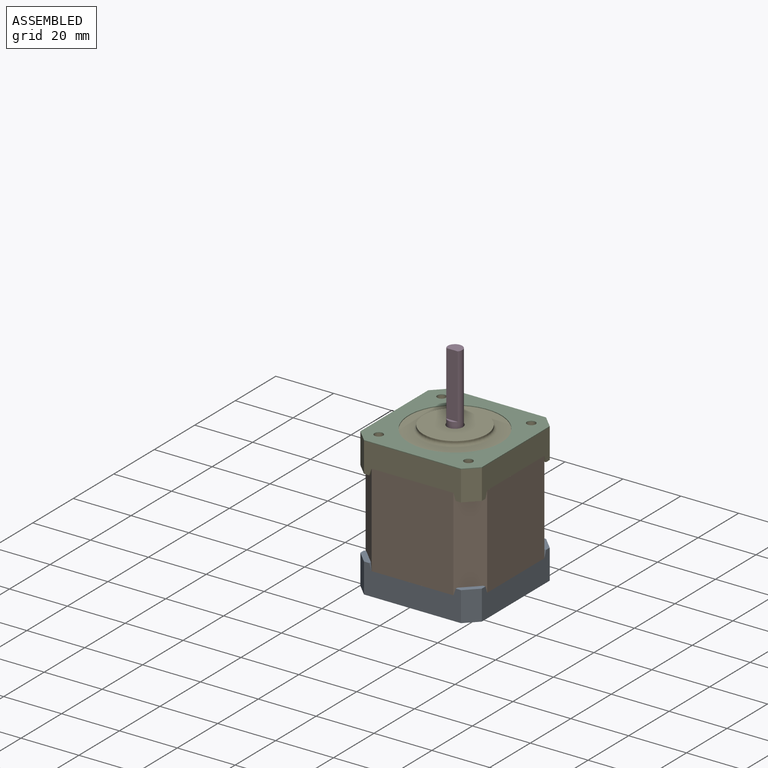
[diagram: assembled view]
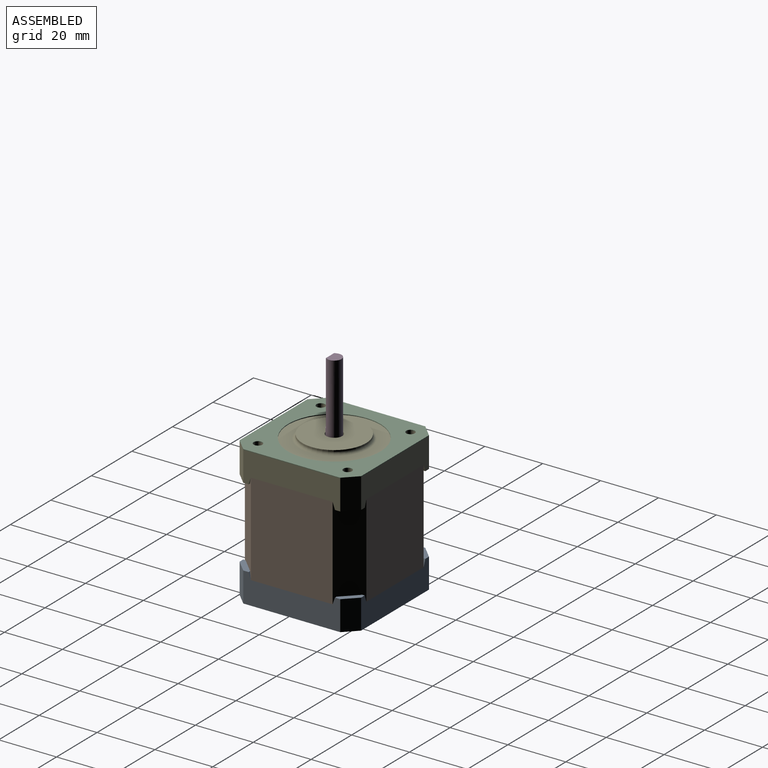
[diagram: assembled view, second angle]
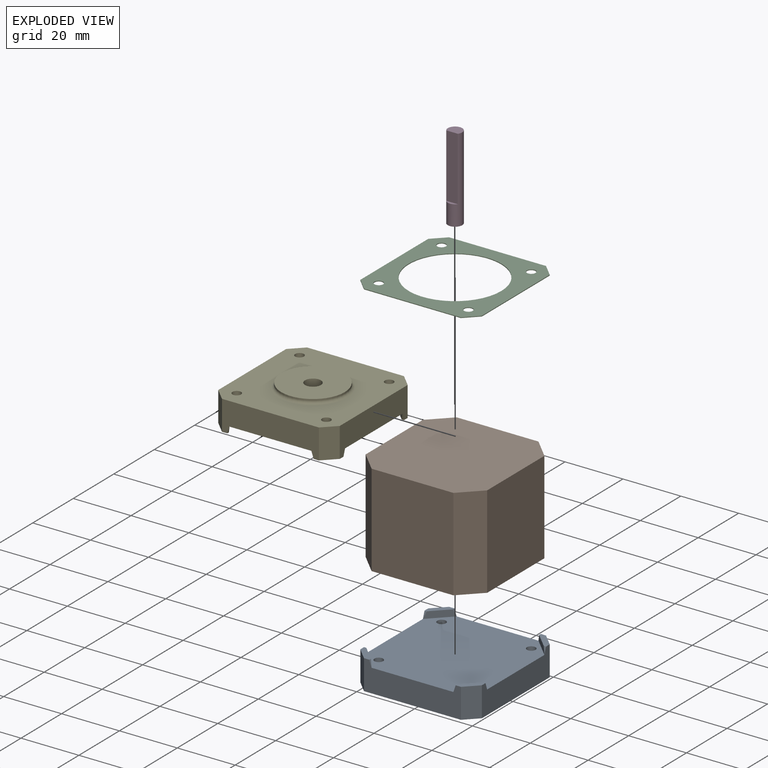
[diagram: exploded view]
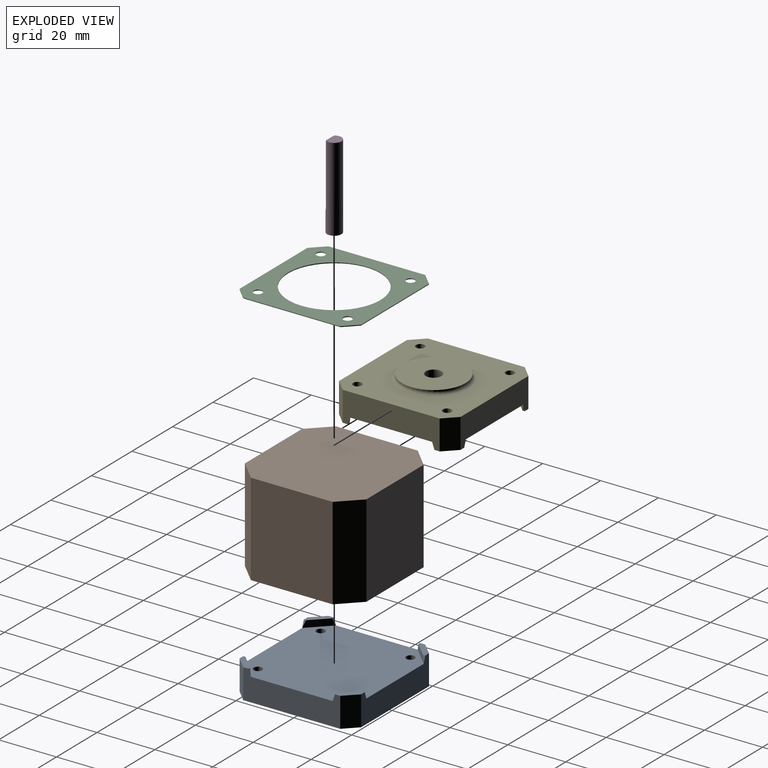
[diagram: exploded view, second angle]
ASSEMBLY  parts=5 mates=4
PART A: 30 faces, bbox 42x42x10.3 mm
  f0: plane 33.51x10.3mm, normal (-1,0,0), area 278.3mm2, adj f3,f10,f15,f16,f19,f20,f26,f27
  f1: plane 6.07x6.07mm, normal (0,0,1), area 13.9mm2, adj f2,f4,f6,f17,f22,f28
  f2: plane 6.86x6.86mm, normal (-0.71,0.71,0), area 19.7mm2, adj f1,f20,f22,f28
  f3: plane 6.07x6.07mm, normal (0,0,1), area 13.9mm2, adj f0,f5,f6,f16,f25,f27
  f4: plane 33.51x10.3mm, normal (1,0,0), area 278.3mm2, adj f1,f8,f17,f18,f19,f20,f28,f29
  f5: plane 6.86x6.86mm, normal (0.71,0.71,0), area 19.7mm2, adj f3,f20,f25,f27
  f6: plane 33.51x10.3mm, normal (0,-1,0), area 278.3mm2, adj f1,f3,f16,f17,f19,f20,f22,f25
  f7: plane 33.51x10.3mm, normal (0,1,0), area 278.3mm2, adj f8,f10,f15,f18,f19,f20,f23,f24
  f8: plane 6.07x6.07mm, normal (0,0,1), area 13.9mm2, adj f4,f7,f9,f18,f23,f29
  f9: plane 6.86x6.86mm, normal (-0.71,-0.71,0), area 19.7mm2, adj f8,f20,f23,f29
  f10: plane 6.07x6.07mm, normal (0,0,1), area 13.9mm2, adj f0,f7,f15,f21,f24,f26
  f11: cylinder r=1.5mm len=8mm, axis (0,0,-1), area 75.4mm2, adj f19,f20
  f12: cylinder r=1.5mm len=8mm, axis (0,0,-1), area 75.4mm2, adj f19,f20
  f13: cylinder r=1.5mm len=8mm, axis (0,0,-1), area 75.4mm2, adj f19,f20
  f14: cylinder r=1.5mm len=8mm, axis (0,0,-1), area 75.4mm2, adj f19,f20
  f15: plane 10.3x4.24mm, normal (-0.71,0.71,0), area 61.8mm2, adj f0,f7,f10,f19
  f16: plane 10.3x4.24mm, normal (-0.71,-0.71,0), area 61.8mm2, adj f0,f3,f6,f19
  f17: plane 10.3x4.24mm, normal (0.71,-0.71,0), area 61.8mm2, adj f1,f4,f6,f19
  f18: plane 10.3x4.24mm, normal (0.71,0.71,0), area 61.8mm2, adj f4,f7,f8,f19
  f19: plane 42x42mm, normal (0,0,-1), area 1699.7mm2, adj f0,f4,f6,f7,f11,f12,f13,f14
  f20: plane 42x42mm, normal (0,0,1), area 1641.6mm2, adj f0,f2,f4,f5,f6,f7,f9,f11
  f21: plane 6.86x6.86mm, normal (0.71,-0.71,0), area 19.7mm2, adj f10,f20,f24,f26
  f22: plane 2.3x0.79mm, normal (-0.95,0,0.33), area 1mm2, adj f1,f2,f6
  f23: plane 2.3x0.79mm, normal (-0.95,0,0.33), area 1mm2, adj f7,f8,f9
  f24: plane 2.3x0.79mm, normal (0.95,0,0.33), area 1mm2, adj f7,f10,f21
  f25: plane 2.3x0.79mm, normal (0.95,0,0.33), area 1mm2, adj f3,f5,f6
  f26: plane 2.3x0.79mm, normal (0,-0.95,0.33), area 1mm2, adj f0,f10,f21
  f27: plane 2.3x0.79mm, normal (0,0.95,0.33), area 1mm2, adj f0,f3,f5
  f28: plane 2.3x0.79mm, normal (0,0.95,0.33), area 1mm2, adj f1,f2,f4
  f29: plane 2.3x0.79mm, normal (0,-0.95,0.33), area 1mm2, adj f4,f8,f9
PART B: 10 faces, bbox 42x42x32 mm
  f0: plane 42x42mm, normal (0,0,-1), area 1669.9mm2, adj f1,f2,f3,f4,f5,f7,f8,f9
  f1: plane 32x28.28mm, normal (-1,0,0), area 905mm2, adj f0,f2,f6,f8
  f2: plane 32x6.86mm, normal (-0.71,0.71,0), area 310.4mm2, adj f0,f1,f3,f6
  f3: plane 32x28.28mm, normal (0,1,0), area 905mm2, adj f0,f2,f4,f6
  f4: plane 32x6.86mm, normal (0.71,0.71,0), area 310.4mm2, adj f0,f3,f5,f6
  f5: plane 32x28.28mm, normal (1,0,0), area 905mm2, adj f0,f4,f6,f7
  f6: plane 42x42mm, normal (0,0,1), area 1669.9mm2, adj f1,f2,f3,f4,f5,f7,f8,f9
  f7: plane 32x6.86mm, normal (0.71,-0.71,0), area 310.4mm2, adj f0,f5,f6,f9
  f8: plane 32x6.86mm, normal (-0.71,-0.71,0), area 310.4mm2, adj f0,f1,f6,f9
  f9: plane 32x28.28mm, normal (0,-1,0), area 905mm2, adj f0,f6,f7,f8
PART C: 15 faces, bbox 42x42x0.3 mm
  f0: plane 33.51x0.25mm, normal (0,1,0), area 8.4mm2, adj f1,f10,f13,f14
  f1: plane 4.24x4.24mm, normal (-0.71,0.71,0), area 1.5mm2, adj f0,f2,f13,f14
  f2: plane 33.51x0.25mm, normal (-1,0,0), area 8.4mm2, adj f1,f3,f13,f14
  f3: plane 4.24x4.24mm, normal (-0.71,-0.71,0), area 1.5mm2, adj f2,f4,f13,f14
  f4: plane 33.51x0.25mm, normal (0,-1,0), area 8.4mm2, adj f3,f5,f13,f14
  f5: plane 4.24x4.24mm, normal (0.71,-0.71,0), area 1.5mm2, adj f4,f6,f13,f14
  f6: plane 33.51x0.25mm, normal (1,0,0), area 8.4mm2, adj f5,f10,f13,f14
  f7: cylinder r=1.5mm len=3mm, axis (0,0,-1), area 2.4mm2, adj f13,f14
  f8: cylinder r=1.5mm len=3mm, axis (0,0,-1), area 2.4mm2, adj f13,f14
  f9: cylinder r=1.5mm len=3mm, axis (0,0,-1), area 2.4mm2, adj f13,f14
  f10: plane 4.24x4.24mm, normal (0.71,0.71,0), area 1.5mm2, adj f0,f6,f13,f14
  f11: cylinder r=16mm len=32mm, axis (0,0,-1), area 25.1mm2, adj f13,f14
  f12: cylinder r=1.5mm len=3mm, axis (0,0,-1), area 2.4mm2, adj f13,f14
  f13: plane 42x42mm, normal (0,0,1), area 895.5mm2, adj f0,f1,f2,f3,f4,f5,f6,f7
  f14: plane 42x42mm, normal (0,0,-1), area 895.5mm2, adj f0,f1,f2,f3,f4,f5,f6,f7
PART D: 5 faces, bbox 5x5x29 mm
  f0: cylinder r=2.5mm len=29mm, axis (0,0,-1), area 353.5mm2, adj f1,f2,f3,f4
  f1: plane 5x4mm, normal (0,0,1), area 16.8mm2, adj f0,f4
  f2: plane 5x5mm, normal (0,0,-1), area 19.6mm2, adj f0
  f3: plane 4x1mm, normal (0,0,1), area 2.8mm2, adj f0,f4
  f4: plane 22x4mm, normal (0,-1,0), area 88mm2, adj f0,f1,f3
PART E: 35 faces, bbox 42x42x11.8 mm
  f0: plane 33.51x10.3mm, normal (-1,0,0), area 278.3mm2, adj f3,f10,f15,f16,f19,f20,f26,f27
  f1: plane 6.07x6.07mm, normal (0,0,-1), area 13.9mm2, adj f2,f4,f6,f17,f22,f28
  f2: plane 6.86x6.86mm, normal (-0.71,0.71,0), area 19.7mm2, adj f1,f20,f22,f28
  f3: plane 6.07x6.07mm, normal (0,0,-1), area 13.9mm2, adj f0,f5,f6,f16,f25,f27
  f4: plane 33.51x10.3mm, normal (1,0,0), area 278.3mm2, adj f1,f8,f17,f18,f19,f20,f28,f29
  f5: plane 6.86x6.86mm, normal (0.71,0.71,0), area 19.7mm2, adj f3,f20,f25,f27
  f6: plane 33.51x10.3mm, normal (0,-1,0), area 278.3mm2, adj f1,f3,f16,f17,f19,f20,f22,f25
  f7: plane 33.51x10.3mm, normal (0,1,0), area 278.3mm2, adj f8,f10,f15,f18,f19,f20,f23,f24
  f8: plane 6.07x6.07mm, normal (0,0,-1), area 13.9mm2, adj f4,f7,f9,f18,f23,f29
  f9: plane 6.86x6.86mm, normal (-0.71,-0.71,0), area 19.7mm2, adj f8,f20,f23,f29
  f10: plane 6.07x6.07mm, normal (0,0,-1), area 13.9mm2, adj f0,f7,f15,f21,f24,f26
  f11: cylinder r=1.5mm len=8mm, axis (0,0,1), area 75.4mm2, adj f19,f20
  f12: cylinder r=1.5mm len=8mm, axis (0,0,1), area 75.4mm2, adj f19,f20
  f13: cylinder r=1.5mm len=8mm, axis (0,0,1), area 75.4mm2, adj f19,f20
  f14: cylinder r=1.5mm len=8mm, axis (0,0,1), area 75.4mm2, adj f19,f20
  f15: plane 10.3x4.24mm, normal (-0.71,0.71,0), area 61.8mm2, adj f0,f7,f10,f19
  f16: plane 10.3x4.24mm, normal (-0.71,-0.71,0), area 61.8mm2, adj f0,f3,f6,f19
  f17: plane 10.3x4.24mm, normal (0.71,-0.71,0), area 61.8mm2, adj f1,f4,f6,f19
  f18: plane 10.3x4.24mm, normal (0.71,0.71,0), area 61.8mm2, adj f4,f7,f8,f19
  f19: plane 42x42mm, normal (0,0,1), area 1247.3mm2, adj f0,f4,f6,f7,f11,f12,f13,f14
  f20: plane 42x42mm, normal (0,0,-1), area 1641.6mm2, adj f0,f2,f4,f5,f6,f7,f9,f11
  f21: plane 6.86x6.86mm, normal (0.71,-0.71,0), area 19.7mm2, adj f10,f20,f24,f26
  f22: plane 2.3x0.79mm, normal (-0.95,0,-0.33), area 1mm2, adj f1,f2,f6
  f23: plane 2.3x0.79mm, normal (-0.95,0,-0.33), area 1mm2, adj f7,f8,f9
  f24: plane 2.3x0.79mm, normal (0.95,0,-0.33), area 1mm2, adj f7,f10,f21
  f25: plane 2.3x0.79mm, normal (0.95,0,-0.33), area 1mm2, adj f3,f5,f6
  f26: plane 2.3x0.79mm, normal (0,-0.95,-0.33), area 1mm2, adj f0,f10,f21
  f27: plane 2.3x0.79mm, normal (0,0.95,-0.33), area 1mm2, adj f0,f3,f5
  f28: plane 2.3x0.79mm, normal (0,0.95,-0.33), area 1mm2, adj f1,f2,f4
  f29: plane 2.3x0.79mm, normal (0,-0.95,-0.33), area 1mm2, adj f4,f8,f9
  f30: cylinder r=11mm len=22mm, axis (0,0,-1), area 34.6mm2, adj f31,f32
  f31: plane 22x22mm, normal (0,0,1), area 356.4mm2, adj f30,f33
  f32: torus R=12mm, axis (0,0,1), area 112.2mm2, adj f19,f30
  f33: cylinder r=2.75mm len=5.5mm, axis (0,0,1), area 86.4mm2, adj f31,f34
  f34: plane 5.5x5.5mm, normal (0,0,1), area 23.8mm2, adj f33
PLACE A at identity
PLACE B at identity
PLACE C at identity
PLACE D at identity
PLACE E at identity
MATE fastened C.f9 <-> E.f11  axis (0,0,-1) through (15.5,-15.5,0)mm
MATE fastened E.f20 <-> B.f6  axis (0,0,1) through (14.14,-21,-8)mm
MATE revolute D.f0 <-> E.f33  axis (0,0,-1) through (0,0,-3.5)mm
MATE fastened B.f0 <-> A.f20  axis (0,0,1) through (14.14,-21,-40)mm
